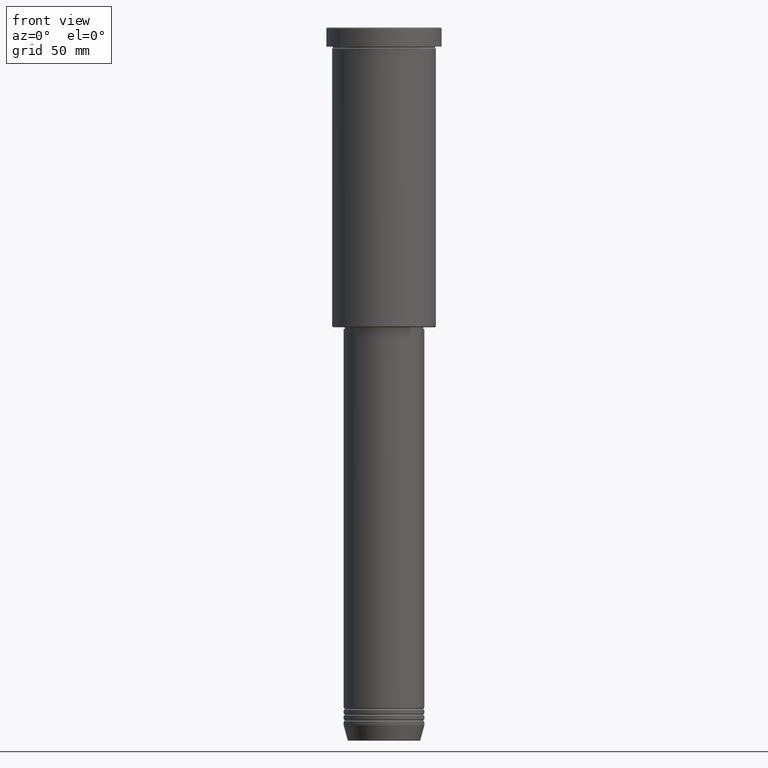
[diagram: clean part render]
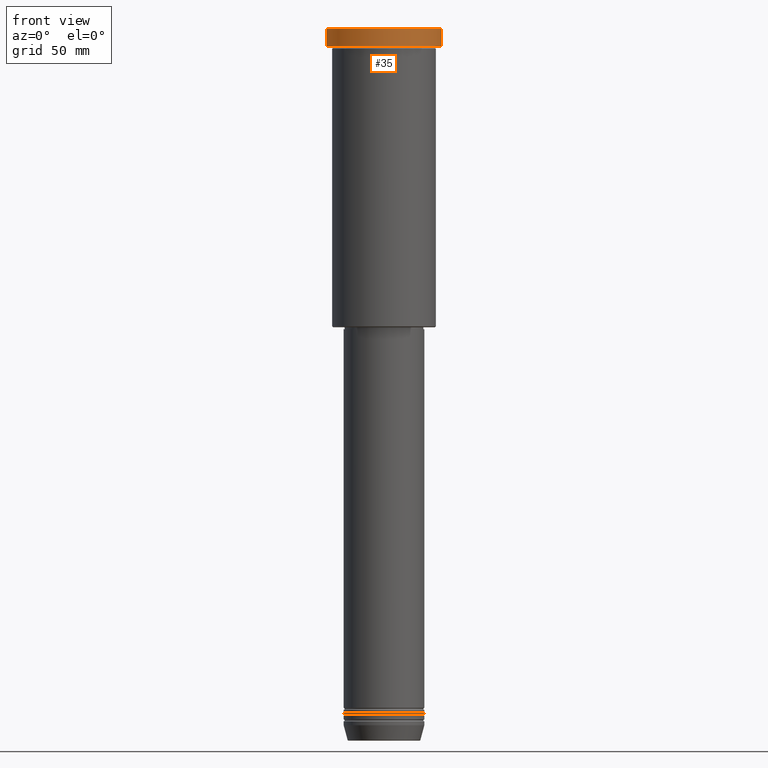
[diagram: same view with one face highlighted and labeled with its STEP entity id]
A machine part, front view. The second image highlights one B-rep face of the part: STEP entity #35.
In plain terms, the highlighted cylindrical surface (partial cylindrical patch) has radius 30 mm, axis along (-0, -0, 1).
Its self-contained STEP definition (entity closure, byte-faithful):
#35 = ADVANCED_FACE ( 'NONE', ( #965 ), #418, .T. ) ;
#40 = DIRECTION ( 'NONE',  ( -0.000000000000000000, -0.000000000000000000, 1.000000000000000000 ) ) ;
#47 = VERTEX_POINT ( 'NONE', #494 ) ;
#105 = CARTESIAN_POINT ( 'NONE',  ( -30.00000000000000000, 3.673940397442059178E-15, -9.999999999999992895 ) ) ;
#126 = LINE ( 'NONE', #861, #962 ) ;
#238 = ORIENTED_EDGE ( 'NONE', *, *, #1062, .T. ) ;
#268 = CIRCLE ( 'NONE', #937, 30.00000000000000000 ) ;
#329 = CARTESIAN_POINT ( 'NONE',  ( 0.000000000000000000, 0.000000000000000000, -9.999999999999992895 ) ) ;
#338 = DIRECTION ( 'NONE',  ( 0.000000000000000000, 0.000000000000000000, -1.000000000000000000 ) ) ;
#346 = VECTOR ( 'NONE', #757, 1000.000000000000000 ) ;
#401 = VERTEX_POINT ( 'NONE', #487 ) ;
#409 = ORIENTED_EDGE ( 'NONE', *, *, #781, .T. ) ;
#412 = EDGE_CURVE ( 'NONE', #401, #47, #553, .T. ) ;
#417 = DIRECTION ( 'NONE',  ( 1.000000000000000000, 0.000000000000000000, 0.000000000000000000 ) ) ;
#418 = CYLINDRICAL_SURFACE ( 'NONE', #612, 30.00000000000000000 ) ;
#464 = CIRCLE ( 'NONE', #879, 30.00000000000000000 ) ;
#480 = VERTEX_POINT ( 'NONE', #105 ) ;
#487 = CARTESIAN_POINT ( 'NONE',  ( 30.00000000000000000, 0.000000000000000000, -9.999999999999992895 ) ) ;
#492 = VERTEX_POINT ( 'NONE', #664 ) ;
#494 = CARTESIAN_POINT ( 'NONE',  ( 30.00000000000000000, 0.000000000000000000, -0.5000000000001183498 ) ) ;
#508 = DIRECTION ( 'NONE',  ( 1.000000000000000000, 0.000000000000000000, 0.000000000000000000 ) ) ;
#553 = LINE ( 'NONE', #653, #346 ) ;
#575 = ORIENTED_EDGE ( 'NONE', *, *, #704, .F. ) ;
#612 = AXIS2_PLACEMENT_3D ( 'NONE', #674, #854, #508 ) ;
#622 = DIRECTION ( 'NONE',  ( 1.000000000000000000, 0.000000000000000000, 0.000000000000000000 ) ) ;
#653 = CARTESIAN_POINT ( 'NONE',  ( 30.00000000000000000, 0.000000000000000000, 0.000000000000000000 ) ) ;
#664 = CARTESIAN_POINT ( 'NONE',  ( -30.00000000000000000, 3.673940397442059178E-15, -0.5000000000001183498 ) ) ;
#670 = ORIENTED_EDGE ( 'NONE', *, *, #412, .T. ) ;
#674 = CARTESIAN_POINT ( 'NONE',  ( 0.000000000000000000, 0.000000000000000000, 0.000000000000000000 ) ) ;
#683 = DIRECTION ( 'NONE',  ( -0.000000000000000000, -0.000000000000000000, 1.000000000000000000 ) ) ;
#704 = EDGE_CURVE ( 'NONE', #480, #492, #126, .T. ) ;
#757 = DIRECTION ( 'NONE',  ( -0.000000000000000000, -0.000000000000000000, 1.000000000000000000 ) ) ;
#781 = EDGE_CURVE ( 'NONE', #47, #492, #268, .T. ) ;
#795 = CARTESIAN_POINT ( 'NONE',  ( 0.000000000000000000, 0.000000000000000000, -0.5000000000001183498 ) ) ;
#797 = EDGE_LOOP ( 'NONE', ( #575, #238, #670, #409 ) ) ;
#854 = DIRECTION ( 'NONE',  ( -0.000000000000000000, -0.000000000000000000, 1.000000000000000000 ) ) ;
#861 = CARTESIAN_POINT ( 'NONE',  ( -30.00000000000000000, 3.673940397442059178E-15, 0.000000000000000000 ) ) ;
#879 = AXIS2_PLACEMENT_3D ( 'NONE', #329, #683, #417 ) ;
#937 = AXIS2_PLACEMENT_3D ( 'NONE', #795, #338, #622 ) ;
#962 = VECTOR ( 'NONE', #40, 1000.000000000000000 ) ;
#965 = FACE_OUTER_BOUND ( 'NONE', #797, .T. ) ;
#1062 = EDGE_CURVE ( 'NONE', #480, #401, #464, .T. ) ;